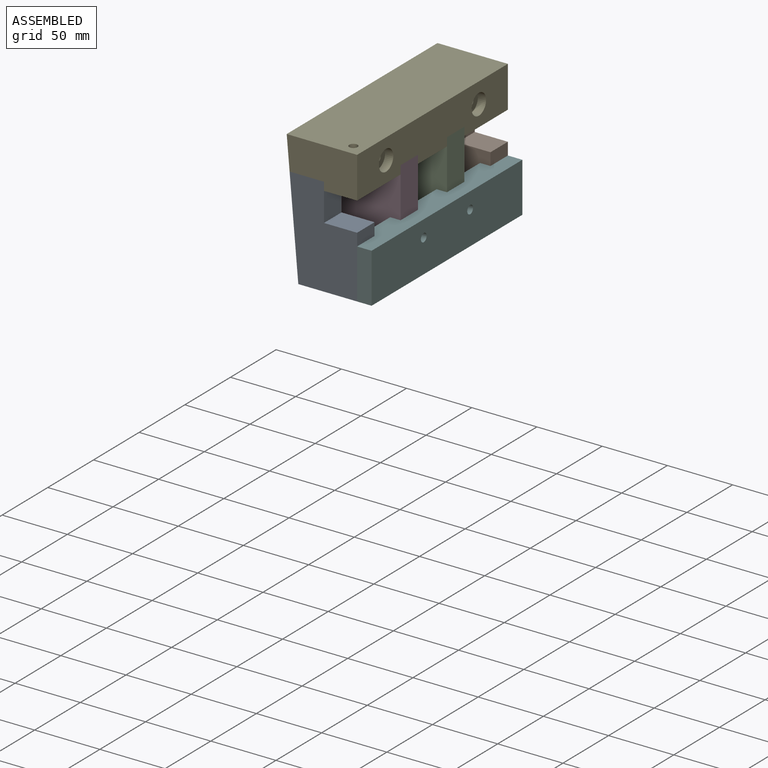
[diagram: assembled view]
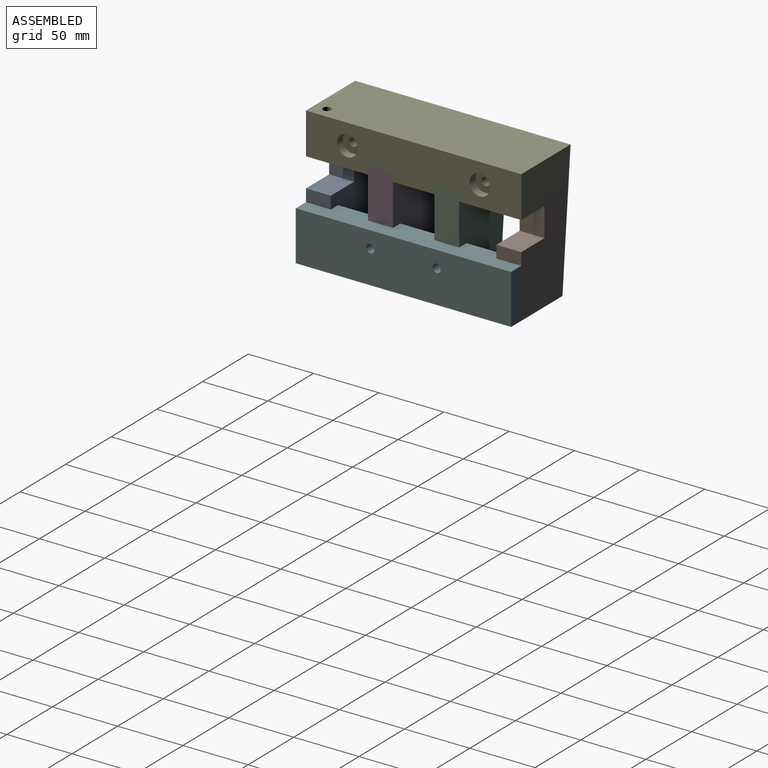
[diagram: assembled view, second angle]
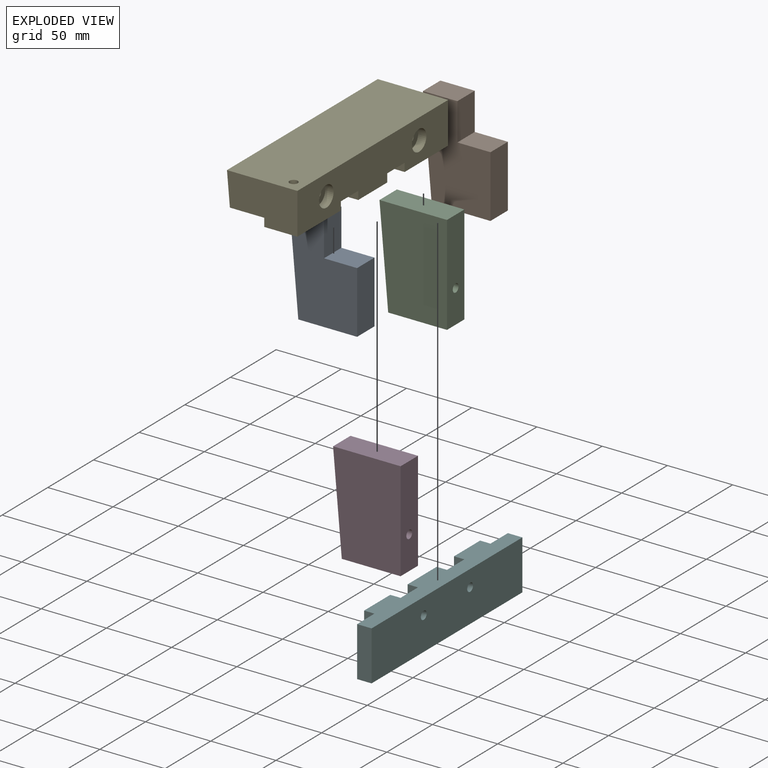
[diagram: exploded view]
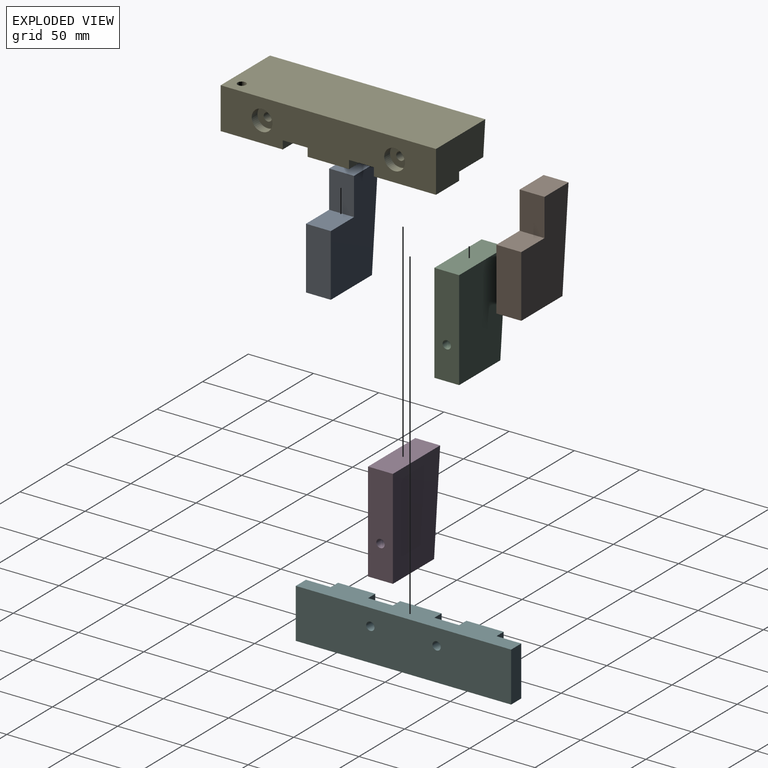
[diagram: exploded view, second angle]
ASSEMBLY  parts=6 mates=5
PART A: 8 faces, bbox 51.8x19.1x76.2 mm
  f0: plane 45.09x19.05mm, normal (0,0,-1), area 858.9mm2, adj f1,f5,f6,f7
  f1: plane 47.63x19.05mm, normal (1,0,0), area 907.3mm2, adj f0,f2,f6,f7
  f2: plane 25.4x19.05mm, normal (0,0,1), area 483.9mm2, adj f1,f3,f6,f7
  f3: plane 28.58x19.05mm, normal (1,0,0), area 544.4mm2, adj f2,f4,f6,f7
  f4: plane 26.35x19.05mm, normal (0,0,1), area 502mm2, adj f3,f5,f6,f7
  f5: plane 76.2x19.05mm, normal (-1,0,-0.09), area 1457.2mm2, adj f0,f4,f6,f7
  f6: plane 76.2x51.75mm, normal (0,1,0), area 2963.8mm2, adj f0,f1,f2,f3,f4,f5
  f7: plane 76.2x51.75mm, normal (0,-1,0), area 2963.8mm2, adj f0,f1,f2,f3,f4,f5
PART B: 8 faces, bbox 51.8x19.1x76.2 mm
  f0: plane 45.09x19.05mm, normal (0,0,-1), area 858.9mm2, adj f1,f5,f6,f7
  f1: plane 47.63x19.05mm, normal (1,0,0), area 907.3mm2, adj f0,f2,f6,f7
  f2: plane 25.4x19.05mm, normal (0,0,1), area 483.9mm2, adj f1,f3,f6,f7
  f3: plane 28.58x19.05mm, normal (1,0,0), area 544.4mm2, adj f2,f4,f6,f7
  f4: plane 26.35x19.05mm, normal (0,0,1), area 502mm2, adj f3,f5,f6,f7
  f5: plane 76.2x19.05mm, normal (-1,0,-0.09), area 1457.2mm2, adj f0,f4,f6,f7
  f6: plane 76.2x51.75mm, normal (0,-1,0), area 2963.8mm2, adj f0,f1,f2,f3,f4,f5
  f7: plane 76.2x51.75mm, normal (0,1,0), area 2963.8mm2, adj f0,f1,f2,f3,f4,f5
PART C: 7 faces, bbox 51.8x19.1x76.2 mm
  f0: plane 45.09x19.05mm, normal (0,0,-1), area 858.9mm2, adj f1,f3,f4,f5
  f1: plane 76.2x19.05mm, normal (1,0,0), area 1419.9mm2, adj f0,f2,f4,f5,f6
  f2: plane 51.75x19.05mm, normal (0,0,1), area 985.9mm2, adj f1,f3,f4,f5
  f3: plane 76.2x19.05mm, normal (-1,0,-0.09), area 1425.4mm2, adj f0,f2,f4,f5,f6
  f4: plane 76.2x51.75mm, normal (0,1,0), area 3689.6mm2, adj f0,f1,f2,f3
  f5: plane 76.2x51.75mm, normal (0,-1,0), area 3689.6mm2, adj f0,f1,f2,f3
  f6: cylinder r=3.17mm len=47.59mm, axis (1,0,0), area 943.8mm2, adj f1,f3
PART D: 7 faces, bbox 51.8x19.1x76.2 mm
  f0: plane 45.09x19.05mm, normal (0,0,-1), area 858.9mm2, adj f1,f3,f4,f5
  f1: plane 76.2x19.05mm, normal (1,0,0), area 1419.9mm2, adj f0,f2,f4,f5,f6
  f2: plane 51.75x19.05mm, normal (0,0,1), area 985.9mm2, adj f1,f3,f4,f5
  f3: plane 76.2x19.05mm, normal (-1,0,-0.09), area 1425.4mm2, adj f0,f2,f4,f5,f6
  f4: plane 76.2x51.75mm, normal (0,-1,0), area 3689.6mm2, adj f0,f1,f2,f3
  f5: plane 76.2x51.75mm, normal (0,1,0), area 3689.6mm2, adj f0,f1,f2,f3
  f6: cylinder r=3.17mm len=47.59mm, axis (1,0,0), area 943.8mm2, adj f1,f3
PART E: 27 faces, bbox 54x165.1x31.8 mm
  f0: plane 53.98x31.75mm, normal (0,1,0), area 1504mm2, adj f2,f5,f6,f7,f14,f16
  f1: plane 53.98x31.75mm, normal (0,-1,0), area 1504mm2, adj f2,f3,f6,f7,f17,f19
  f2: plane 165.1x31.75mm, normal (-1,0,-0.09), area 4712.6mm2, adj f0,f1,f3,f4,f5,f7,f8,f9
  f3: plane 51.2x47.63mm, normal (0,0,-1), area 1915.2mm2, adj f1,f2,f6,f8,f17,f18,f26
  f4: plane 51.2x31.75mm, normal (0,0,-1), area 1625.5mm2, adj f2,f6,f9,f12
  f5: plane 51.2x47.63mm, normal (0,0,-1), area 1946.8mm2, adj f0,f2,f6,f11,f14,f15
  f6: plane 165.1x31.75mm, normal (1,0,0), area 4604.1mm2, adj f0,f1,f3,f4,f5,f7,f8,f9
  f7: plane 165.1x53.98mm, normal (0,0,1), area 8879.6mm2, adj f0,f1,f2,f6,f26
  f8: plane 51.75x6.35mm, normal (0,1,0), area 326.9mm2, adj f2,f3,f6,f10
  f9: plane 51.75x6.35mm, normal (0,-1,0), area 326.9mm2, adj f2,f4,f6,f10
  f10: plane 51.75x19.05mm, normal (0,0,-1), area 985.9mm2, adj f2,f6,f8,f9
  f11: plane 51.75x6.35mm, normal (0,-1,0), area 326.9mm2, adj f2,f5,f6,f13
  f12: plane 51.75x6.35mm, normal (0,1,0), area 326.9mm2, adj f2,f4,f6,f13
  f13: plane 51.75x19.05mm, normal (0,0,-1), area 985.9mm2, adj f2,f6,f11,f12
  f14: plane 19.05x6.35mm, normal (-1,0,0), area 121mm2, adj f0,f5,f15,f16
  f15: plane 26.35x6.35mm, normal (0,1,0), area 165.6mm2, adj f2,f5,f14,f16
  f16: plane 26.35x19.05mm, normal (0,0,-1), area 502mm2, adj f0,f2,f14,f15
  f17: plane 19.05x6.35mm, normal (-1,0,0), area 121mm2, adj f1,f3,f18,f19
  f18: plane 26.35x6.35mm, normal (0,-1,0), area 165.6mm2, adj f2,f3,f17,f19
  f19: plane 26.35x19.05mm, normal (0,0,-1), area 502mm2, adj f1,f2,f17,f18
  f20: cylinder r=7.94mm len=15.88mm, axis (1,0,0), area 316.7mm2, adj f6,f21
  f21: plane 15.88x15.88mm, normal (1,0,0), area 166.3mm2, adj f20,f25
  f22: cylinder r=7.94mm len=15.88mm, axis (1,0,0), area 316.7mm2, adj f6,f23
  f23: plane 15.88x15.88mm, normal (1,0,0), area 166.3mm2, adj f22,f24
  f24: cylinder r=3.17mm len=46.52mm, axis (1,0,0), area 922.4mm2, adj f2,f23
  f25: cylinder r=3.17mm len=46.52mm, axis (1,0,0), area 922.4mm2, adj f2,f21
  f26: cylinder r=3.17mm len=31.75mm, axis (0,0,-1), area 633.4mm2, adj f3,f7
PART F: 20 faces, bbox 19.1x165.1x38.1 mm
  f0: plane 38.1x11.11mm, normal (0,-1,0), area 423.4mm2, adj f1,f2,f7,f16
  f1: plane 165.1x19.05mm, normal (0,0,-1), area 2540.3mm2, adj f0,f3,f4,f5,f6,f7,f8,f9
  f2: plane 165.1x19.05mm, normal (0,0,1), area 2540.3mm2, adj f0,f3,f4,f5,f6,f7,f8,f9
  f3: plane 38.1x28.58mm, normal (-1,0,0), area 1088.7mm2, adj f1,f2,f11,f17
  f4: plane 38.1x31.75mm, normal (-1,0,0), area 1209.7mm2, adj f1,f2,f12,f15
  f5: plane 38.1x28.58mm, normal (-1,0,0), area 1088.7mm2, adj f1,f2,f9,f14
  f6: plane 38.1x11.11mm, normal (0,1,0), area 423.4mm2, adj f1,f2,f7,f8
  f7: plane 165.1x38.1mm, normal (1,0,0), area 6227mm2, adj f0,f1,f2,f6,f18,f19
  f8: plane 38.1x19.05mm, normal (-1,0,0), area 725.8mm2, adj f1,f2,f6,f9
  f9: plane 38.1x7.94mm, normal (0,1,0), area 302.4mm2, adj f1,f2,f5,f8
  f10: plane 38.1x19.05mm, normal (-1,0,0), area 694.1mm2, adj f1,f2,f11,f12,f19
  f11: plane 38.1x7.94mm, normal (0,1,0), area 302.4mm2, adj f1,f2,f3,f10
  f12: plane 38.1x7.94mm, normal (0,-1,0), area 302.4mm2, adj f1,f2,f4,f10
  f13: plane 38.1x19.05mm, normal (-1,0,0), area 694.1mm2, adj f1,f2,f14,f15,f18
  f14: plane 38.1x7.94mm, normal (0,-1,0), area 302.4mm2, adj f1,f2,f5,f13
  f15: plane 38.1x7.94mm, normal (0,1,0), area 302.4mm2, adj f1,f2,f4,f13
  f16: plane 38.1x19.05mm, normal (-1,0,0), area 725.8mm2, adj f0,f1,f2,f17
  f17: plane 38.1x7.94mm, normal (0,-1,0), area 302.4mm2, adj f1,f2,f3,f16
  f18: cylinder r=3.17mm len=11.11mm, axis (1,0,0), area 221.7mm2, adj f7,f13
  f19: cylinder r=3.17mm len=11.11mm, axis (1,0,0), area 221.7mm2, adj f7,f10
PLACE A t=(-62.62,5.3,-15.32)mm
PLACE B t=(-62.62,5.3,-15.32)mm
PLACE C t=(-62.62,5.3,-15.32)mm
PLACE D t=(-62.62,5.3,-15.32)mm
PLACE E t=(-62.62,5.3,-15.32)mm
PLACE F t=(-62.62,5.3,-15.32)mm
MATE fastened C.f2 <-> E.f13  axis (0,0,1) through (-99.6,30.7,22.78)mm
MATE fastened E.f19 <-> A.f4  axis (0,0,-1) through (-112.3,-67.72,22.78)mm
MATE fastened F.f16 <-> A.f1  axis (-1,0,0) through (-73.73,-77.25,-53.42)mm
MATE fastened B.f4 <-> E.f16  axis (0,0,1) through (-112.3,78.33,22.78)mm
MATE fastened D.f2 <-> E.f10  axis (0,0,1) through (-99.6,-20.1,22.78)mm
